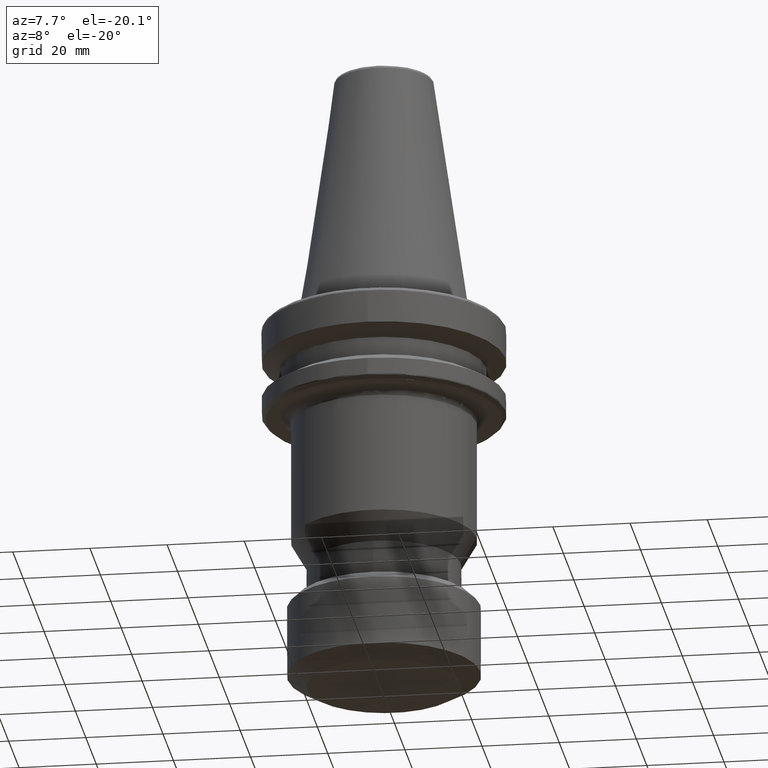
[diagram: clean part render]
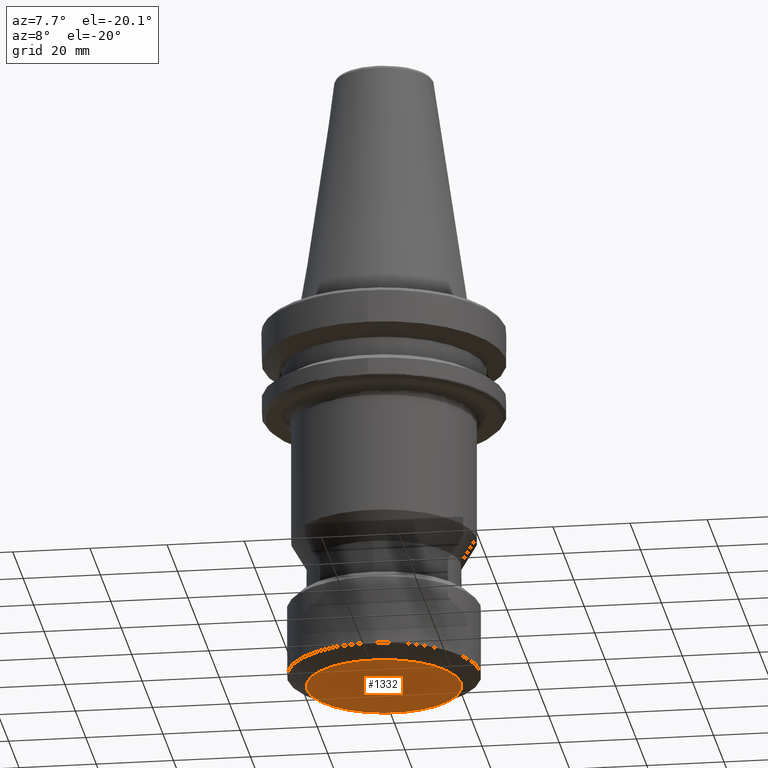
[diagram: same view with one face highlighted and labeled with its STEP entity id]
A machine part, auxiliary view. The second image highlights one B-rep face of the part: STEP entity #1332.
In plain terms, the highlighted planar face has unit normal (0, 0, 1).
Its self-contained STEP definition (entity closure, byte-faithful):
#179 = VERTEX_POINT ( 'NONE', #2904 ) ;
#203 = EDGE_CURVE ( 'NONE', #179, #2243, #2281, .T. ) ;
#293 = FACE_OUTER_BOUND ( 'NONE', #630, .T. ) ;
#559 = EDGE_CURVE ( 'NONE', #2243, #179, #1213, .T. ) ;
#630 = EDGE_LOOP ( 'NONE', ( #3317, #997 ) ) ;
#632 = CARTESIAN_POINT ( 'NONE',  ( 19.99999999999985400, 0.0000000000000000000, -100.0000000000000900 ) ) ;
#720 = DIRECTION ( 'NONE',  ( 1.000000000000000000, 0.0000000000000000000, 0.0000000000000000000 ) ) ;
#997 = ORIENTED_EDGE ( 'NONE', *, *, #203, .T. ) ;
#1028 = DIRECTION ( 'NONE',  ( -0.0000000000000000000, -0.0000000000000000000, -1.000000000000000000 ) ) ;
#1072 = CARTESIAN_POINT ( 'NONE',  ( 0.0000000000000000000, 0.0000000000000000000, -100.0000000000000900 ) ) ;
#1213 = CIRCLE ( 'NONE', #2867, 19.99999999999985400 ) ;
#1332 = ADVANCED_FACE ( 'NONE', ( #293 ), #1369, .F. ) ;
#1354 = CARTESIAN_POINT ( 'NONE',  ( -20.23999999999999800, -20.23999999999999800, -100.0000000000000000 ) ) ;
#1363 = DIRECTION ( 'NONE',  ( 0.0000000000000000000, 0.0000000000000000000, 1.000000000000000000 ) ) ;
#1366 = DIRECTION ( 'NONE',  ( 1.000000000000000000, 0.0000000000000000000, 0.0000000000000000000 ) ) ;
#1369 = PLANE ( 'NONE',  #2723 ) ;
#1379 = DIRECTION ( 'NONE',  ( 1.000000000000000000, 0.0000000000000000000, 0.0000000000000000000 ) ) ;
#1982 = CARTESIAN_POINT ( 'NONE',  ( 0.0000000000000000000, 0.0000000000000000000, -100.0000000000000900 ) ) ;
#2243 = VERTEX_POINT ( 'NONE', #632 ) ;
#2281 = CIRCLE ( 'NONE', #2554, 19.99999999999985400 ) ;
#2554 = AXIS2_PLACEMENT_3D ( 'NONE', #1982, #2745, #1379 ) ;
#2723 = AXIS2_PLACEMENT_3D ( 'NONE', #1354, #1363, #1366 ) ;
#2745 = DIRECTION ( 'NONE',  ( -0.0000000000000000000, -0.0000000000000000000, -1.000000000000000000 ) ) ;
#2867 = AXIS2_PLACEMENT_3D ( 'NONE', #1072, #1028, #720 ) ;
#2904 = CARTESIAN_POINT ( 'NONE',  ( -19.99999999999985400, 2.755455298081525800E-015, -100.0000000000000900 ) ) ;
#3317 = ORIENTED_EDGE ( 'NONE', *, *, #559, .T. ) ;